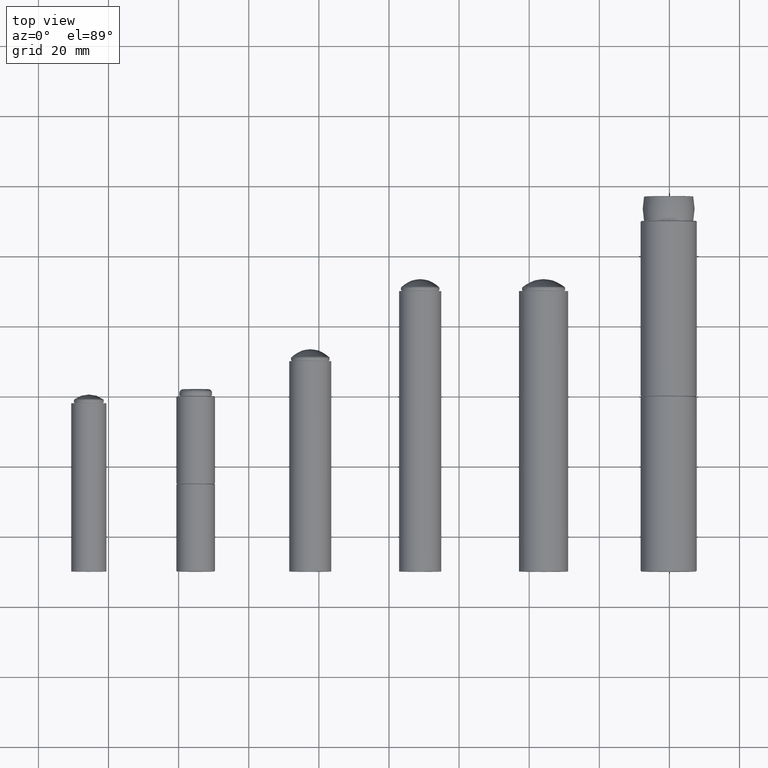
[diagram: clean part render]
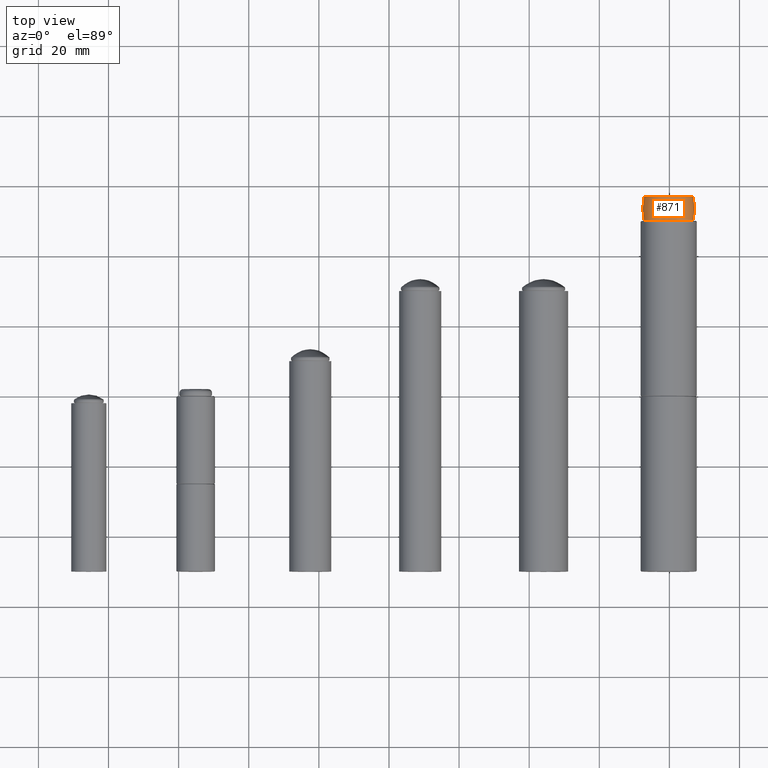
[diagram: same view with one face highlighted and labeled with its STEP entity id]
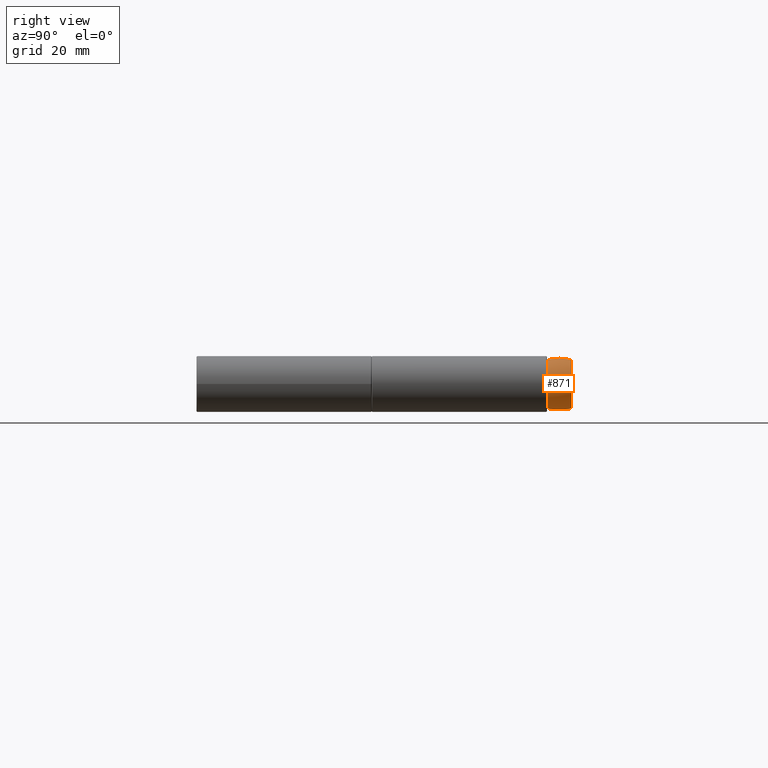
[diagram: same view with one face highlighted and labeled with its STEP entity id]
A machine part, top view. The second image highlights one B-rep face of the part: STEP entity #871.
A second angle (right view) of the same face is appended — the face is thin or edge-on in the first view.
In plain terms, the highlighted face is a freeform B-spline surface patch.
Its self-contained STEP definition (entity closure, byte-faithful):
#11=(
BOUNDED_CURVE()
B_SPLINE_CURVE(2,(#1656,#1657,#1658),.UNSPECIFIED.,.F.,.F.)
B_SPLINE_CURVE_WITH_KNOTS((3,3),(-0.217214281314195,0.217214281314195),
 .UNSPECIFIED.)
CURVE()
GEOMETRIC_REPRESENTATION_ITEM()
RATIONAL_B_SPLINE_CURVE((1.,0.976501588291949,1.))
REPRESENTATION_ITEM('')
);
#12=(
BOUNDED_SURFACE()
B_SPLINE_SURFACE(2,2,((#1628,#1629,#1630,#1631,#1632,#1633,#1634,#1635,
#1636),(#1637,#1638,#1639,#1640,#1641,#1642,#1643,#1644,#1645),(#1646,#1647,
#1648,#1649,#1650,#1651,#1652,#1653,#1654)),.UNSPECIFIED.,.F.,.T.,.F.)
B_SPLINE_SURFACE_WITH_KNOTS((3,3),(3,2,2,2,3),(-0.217214281314195,0.217214281314195),
(-3.14159265358979,-1.5707963267949,0.,1.5707963267949,3.14159265358979),
 .UNSPECIFIED.)
GEOMETRIC_REPRESENTATION_ITEM()
RATIONAL_B_SPLINE_SURFACE(((1.,0.707106781186548,1.,0.707106781186548,1.,
0.707106781186548,1.,0.707106781186548,1.),(0.976501588291949,0.690490894920671,
0.976501588291949,0.690490894920671,0.976501588291949,0.690490894920671,
0.976501588291949,0.690490894920671,0.976501588291949),(1.,0.707106781186548,
1.,0.707106781186548,1.,0.707106781186548,1.,0.707106781186548,1.)))
REPRESENTATION_ITEM('')
SURFACE()
);
#318=FACE_OUTER_BOUND('',#436,.T.);
#436=EDGE_LOOP('',(#763,#764,#765,#766,#767,#768));
#509=CIRCLE('',#1036,7.03548088837881);
#510=CIRCLE('',#1037,7.03548088837881);
#512=CIRCLE('',#1039,7.03548088837881);
#513=CIRCLE('',#1040,7.03548088837881);
#575=VERTEX_POINT('',#1622);
#576=VERTEX_POINT('',#1623);
#578=VERTEX_POINT('',#1655);
#579=VERTEX_POINT('',#1659);
#641=EDGE_CURVE('',#575,#576,#509,.T.);
#642=EDGE_CURVE('',#576,#575,#510,.T.);
#644=EDGE_CURVE('',#576,#578,#11,.T.);
#645=EDGE_CURVE('',#579,#578,#512,.T.);
#646=EDGE_CURVE('',#578,#579,#513,.T.);
#763=ORIENTED_EDGE('',*,*,#641,.F.);
#764=ORIENTED_EDGE('',*,*,#642,.F.);
#765=ORIENTED_EDGE('',*,*,#644,.T.);
#766=ORIENTED_EDGE('',*,*,#645,.F.);
#767=ORIENTED_EDGE('',*,*,#646,.F.);
#768=ORIENTED_EDGE('',*,*,#644,.F.);
#871=ADVANCED_FACE('',(#318),#12,.F.);
#1036=AXIS2_PLACEMENT_3D('',#1624,#1355,#1356);
#1037=AXIS2_PLACEMENT_3D('',#1625,#1357,#1358);
#1039=AXIS2_PLACEMENT_3D('',#1660,#1361,#1362);
#1040=AXIS2_PLACEMENT_3D('',#1661,#1363,#1364);
#1355=DIRECTION('center_axis',(-1.33226762955019E-16,1.,0.));
#1356=DIRECTION('ref_axis',(1.,1.57803431242208E-16,0.));
#1357=DIRECTION('center_axis',(-1.33226762955019E-16,1.,0.));
#1358=DIRECTION('ref_axis',(1.,1.57803431242208E-16,0.));
#1361=DIRECTION('center_axis',(1.33226762955019E-16,-1.,0.));
#1362=DIRECTION('ref_axis',(1.,1.57803431242208E-16,0.));
#1363=DIRECTION('center_axis',(1.33226762955019E-16,-1.,0.));
#1364=DIRECTION('ref_axis',(1.,1.57803431242208E-16,0.));
#1622=CARTESIAN_POINT('',(-7.03548088837881,6.84310204081633,8.61597915041548E-16));
#1623=CARTESIAN_POINT('',(2.09030072162862E-17,6.84310204081633,-7.03548088837881));
#1624=CARTESIAN_POINT('Origin',(2.09030072162863E-17,6.84310204081633,0.));
#1625=CARTESIAN_POINT('Origin',(2.09030072162863E-17,6.84310204081633,0.));
#1628=CARTESIAN_POINT('Ctrl Pts',(9.11684333468839E-16,0.156897959183672,
-7.03548088837881));
#1629=CARTESIAN_POINT('Ctrl Pts',(-7.03548088837881,0.156897959183671,-7.03548088837881));
#1630=CARTESIAN_POINT('Ctrl Pts',(-7.03548088837881,0.156897959183671,0.));
#1631=CARTESIAN_POINT('Ctrl Pts',(-7.03548088837881,0.156897959183671,7.03548088837881));
#1632=CARTESIAN_POINT('Ctrl Pts',(9.11684333468839E-16,0.156897959183672,
7.03548088837881));
#1633=CARTESIAN_POINT('Ctrl Pts',(7.03548088837881,0.156897959183673,7.03548088837881));
#1634=CARTESIAN_POINT('Ctrl Pts',(7.03548088837881,0.156897959183673,0.));
#1635=CARTESIAN_POINT('Ctrl Pts',(7.03548088837881,0.156897959183673,-7.03548088837881));
#1636=CARTESIAN_POINT('Ctrl Pts',(9.11684333468839E-16,0.156897959183672,
-7.03548088837881));
#1637=CARTESIAN_POINT('Ctrl Pts',(4.66293670342563E-16,3.5,-7.77329085379041));
#1638=CARTESIAN_POINT('Ctrl Pts',(-7.7732908537904,3.5,-7.7732908537904));
#1639=CARTESIAN_POINT('Ctrl Pts',(-7.77329085379041,3.5,0.));
#1640=CARTESIAN_POINT('Ctrl Pts',(-7.7732908537904,3.5,7.7732908537904));
#1641=CARTESIAN_POINT('Ctrl Pts',(4.66293670342563E-16,3.5,7.77329085379041));
#1642=CARTESIAN_POINT('Ctrl Pts',(7.7732908537904,3.5,7.7732908537904));
#1643=CARTESIAN_POINT('Ctrl Pts',(7.77329085379041,3.5,0.));
#1644=CARTESIAN_POINT('Ctrl Pts',(7.7732908537904,3.5,-7.7732908537904));
#1645=CARTESIAN_POINT('Ctrl Pts',(4.66293670342563E-16,3.5,-7.77329085379041));
#1646=CARTESIAN_POINT('Ctrl Pts',(2.09030072162862E-17,6.84310204081633,
-7.03548088837881));
#1647=CARTESIAN_POINT('Ctrl Pts',(-7.03548088837881,6.84310204081633,-7.03548088837881));
#1648=CARTESIAN_POINT('Ctrl Pts',(-7.03548088837881,6.84310204081633,6.16297582203915E-32));
#1649=CARTESIAN_POINT('Ctrl Pts',(-7.03548088837881,6.84310204081633,7.03548088837881));
#1650=CARTESIAN_POINT('Ctrl Pts',(2.09030072162863E-17,6.84310204081633,
7.03548088837881));
#1651=CARTESIAN_POINT('Ctrl Pts',(7.03548088837881,6.84310204081633,7.03548088837881));
#1652=CARTESIAN_POINT('Ctrl Pts',(7.03548088837881,6.84310204081633,-6.16297582203915E-32));
#1653=CARTESIAN_POINT('Ctrl Pts',(7.03548088837881,6.84310204081633,-7.03548088837881));
#1654=CARTESIAN_POINT('Ctrl Pts',(2.09030072162862E-17,6.84310204081633,
-7.03548088837881));
#1655=CARTESIAN_POINT('',(9.11684333468839E-16,0.156897959183672,-7.03548088837881));
#1656=CARTESIAN_POINT('Ctrl Pts',(2.09030072162862E-17,6.84310204081633,
-7.03548088837881));
#1657=CARTESIAN_POINT('Ctrl Pts',(4.66293670342563E-16,3.5,-7.77329085379041));
#1658=CARTESIAN_POINT('Ctrl Pts',(9.11684333468839E-16,0.156897959183672,
-7.03548088837881));
#1659=CARTESIAN_POINT('',(-7.03548088837881,0.156897959183672,-8.61597915041548E-16));
#1660=CARTESIAN_POINT('Origin',(9.11684333468839E-16,0.156897959183673,
0.));
#1661=CARTESIAN_POINT('Origin',(9.11684333468839E-16,0.156897959183673,
0.));